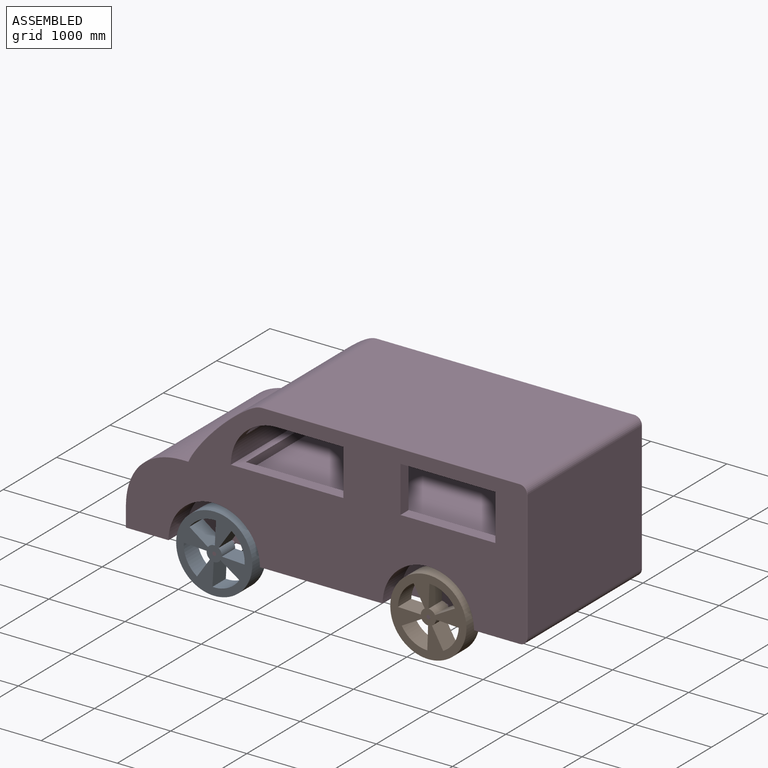
[diagram: assembled view]
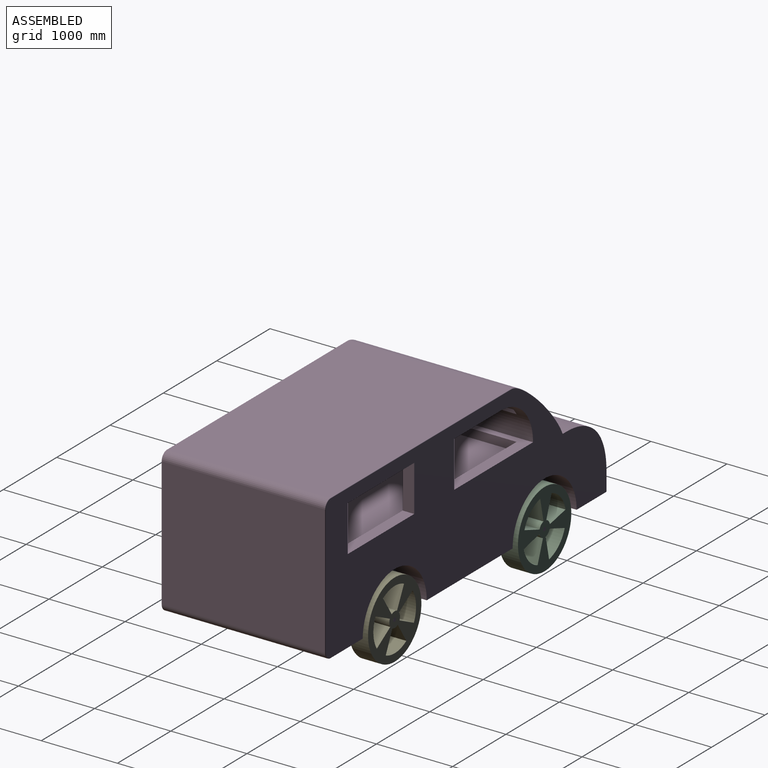
[diagram: assembled view, second angle]
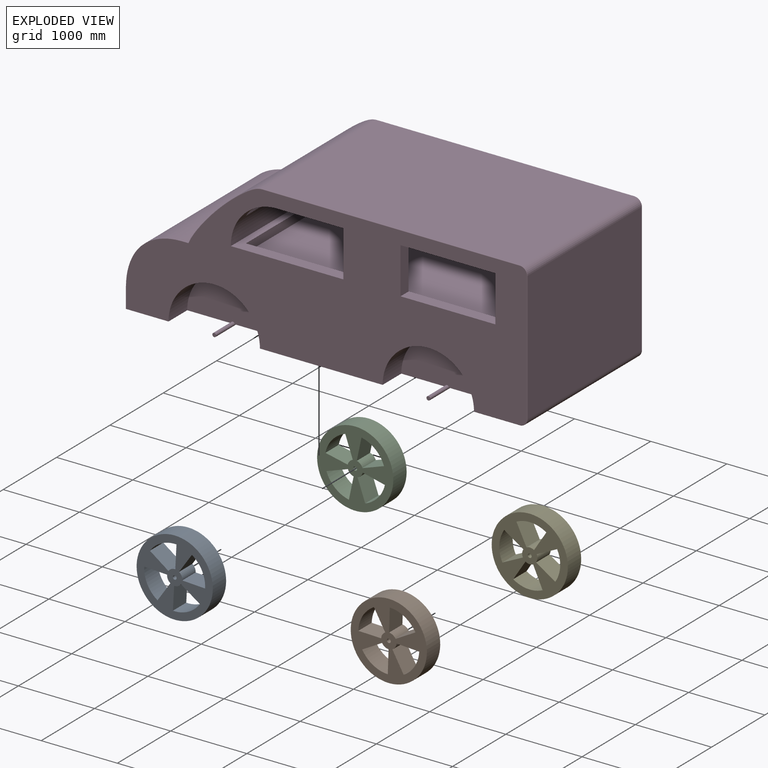
[diagram: exploded view]
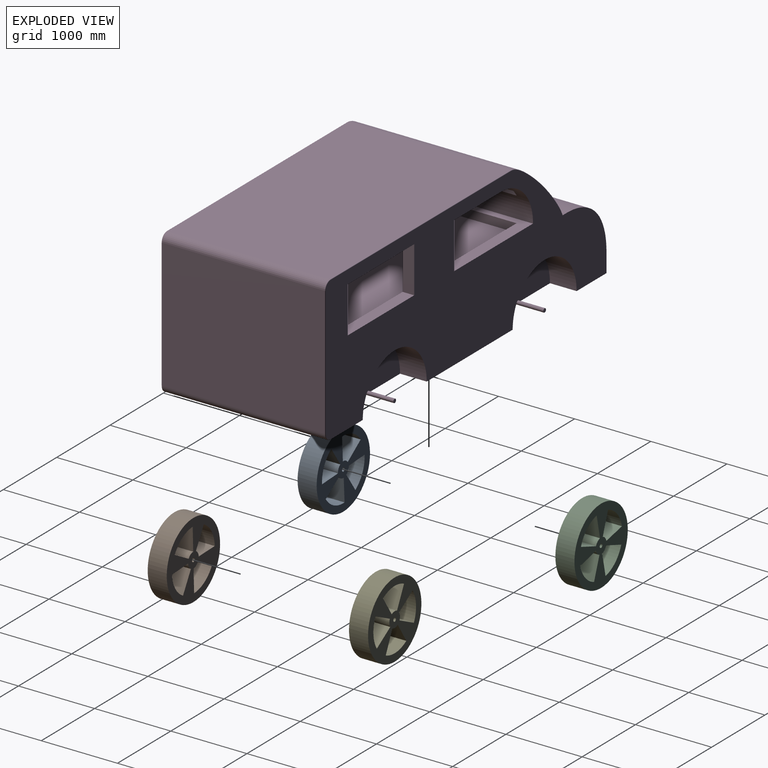
[diagram: exploded view, second angle]
ASSEMBLY  parts=5 mates=4
PART A: 20 faces, bbox 1000x250x1000 mm
  f0: cylinder r=100mm len=250mm, axis (0,1,0), area 26179.9mm2, adj f1,f16,f17,f18
  f1: plane 259.81x250mm, normal (0.5,0,-0.87), area 75000mm2, adj f0,f2,f17,f18
  f2: cylinder r=400mm len=393.65mm, axis (0,1,0), area 102895.9mm2, adj f1,f16,f17,f18
  f3: plane 263.4x250mm, normal (0.88,0,-0.48), area 75005.5mm2, adj f4,f12,f17,f18
  f4: cylinder r=100mm len=250mm, axis (0,1,0), area 26179.9mm2, adj f3,f5,f17,f18
  f5: plane 263.4x250mm, normal (-0.88,0,-0.48), area 75005.5mm2, adj f4,f12,f17,f18
  f6: plane 263.4x250mm, normal (-0.48,0,-0.88), area 75005.5mm2, adj f7,f13,f17,f18
  f7: cylinder r=100mm len=250mm, axis (0,1,0), area 26179.9mm2, adj f6,f8,f17,f18
  f8: plane 259.81x250mm, normal (-0.5,0,0.87), area 75000mm2, adj f7,f13,f17,f18
  f9: plane 263.4x250mm, normal (-0.88,0,0.48), area 75005.5mm2, adj f10,f14,f17,f18
  f10: cylinder r=100mm len=250mm, axis (0,1,0), area 26179.9mm2, adj f9,f11,f17,f18
  f11: plane 259.81x250mm, normal (0.87,0,0.5), area 75000mm2, adj f10,f14,f17,f18
  f12: cylinder r=400mm len=387.3mm, axis (0,1,0), area 101072.1mm2, adj f3,f5,f17,f18
  f13: cylinder r=400mm len=393.65mm, axis (0,1,0), area 102895.9mm2, adj f6,f8,f17,f18
  f14: cylinder r=400mm len=393.65mm, axis (0,1,0), area 102895.9mm2, adj f9,f11,f17,f18
  f15: cylinder r=500mm len=1000mm, axis (0,1,0), area 785398.2mm2, adj f17,f18
  f16: plane 263.4x250mm, normal (0.48,0,0.88), area 75005.5mm2, adj f0,f2,f17,f18
  f17: plane 1000x1000mm, normal (0,-1,0), area 474747mm2, adj f0,f1,f2,f3,f4,f5,f6,f7
  f18: plane 1000x1000mm, normal (0,1,0), area 474747mm2, adj f0,f1,f2,f3,f4,f5,f6,f7
  f19: cylinder r=25mm len=250mm, axis (0,-1,0), area 39269.9mm2, adj f17,f18
PART B: same geometry as A
PART C: same geometry as A
PART D: 68 faces, bbox 5279.3x2367x1933.2 mm
  f0: plane 2761.01x2151.78mm, normal (0,0,-1), area 5136084.7mm2, adj f2,f29,f40,f41,f42,f43,f44,f45
  f1: plane 2141.78x1175mm, normal (0,0,-1), area 2119843.6mm2, adj f42,f43,f44,f45,f49,f55,f56,f62
  f2: plane 5266.01x1895.01mm, normal (0,-1,0), area 6095918.6mm2, adj f0,f14,f15,f16,f17,f18,f25,f26
  f3: plane 1851.78x113.65mm, normal (1,0,0), area 210454.3mm2, adj f4,f5,f10,f17
  f4: plane 3649.97x849.97mm, normal (0,1,0), area 1142500.4mm2, adj f3,f6,f7,f8,f9,f10,f11,f12
  f5: plane 3649.97x849.97mm, normal (0,-1,0), area 1142500.4mm2, adj f3,f6,f7,f8,f9,f10,f11,f12
  f6: plane 1851.78x99.97mm, normal (-1,0,0), area 185128.2mm2, adj f4,f5,f7,f12
  f7: plane 3200x1851.78mm, normal (0,0,-1), area 5925701.8mm2, adj f4,f5,f6,f13
  f8: plane 1851.78x0.05mm, normal (1,0,0), area 93.6mm2, adj f4,f5,f9,f11
  f9: plane 1851.78x90.81mm, normal (0.71,0,-0.71), area 237807.3mm2, adj f4,f5,f8,f18
  f10: plane 3649.97x1851.78mm, normal (0,0,1), area 6758953.6mm2, adj f3,f4,f5,f13
  f11: plane 1851.78x50mm, normal (0,0,-1), area 92589.1mm2, adj f4,f5,f8,f12
  f12: plane 1851.78x149.97mm, normal (0.71,0,-0.71), area 392751.6mm2, adj f4,f5,f6,f11
  f13: plane 1851.78x750mm, normal (-1,0,0), area 1388836.3mm2, adj f4,f5,f7,f10
  f14: plane 2151.78x6.7mm, normal (1,0,0), area 14418.6mm2, adj f2,f17,f18,f29
  f15: plane 876.84x150mm, normal (0,0,-1), area 131525.6mm2, adj f2,f4,f16,f18
  f16: plane 606.7x150mm, normal (-1,0,0), area 91005.1mm2, adj f2,f4,f15,f17
  f17: plane 2151.78x1476.84mm, normal (0,0,1), area 614967mm2, adj f2,f3,f4,f5,f14,f16,f20,f29
  f18: cylinder r=600mm len=2151.78mm, axis (0,1,0), area 1157183mm2, adj f2,f4,f5,f9,f14,f15,f19,f29
  f19: plane 876.84x150mm, normal (0,0,-1), area 131525.6mm2, adj f5,f18,f20,f29
  f20: plane 606.7x150mm, normal (-1,0,0), area 91005.1mm2, adj f5,f17,f19,f29
  f21: plane 606.7x150mm, normal (1,0,0), area 91005.1mm2, adj f5,f22,f24,f29
  f22: plane 1245.33x150mm, normal (0,0,1), area 186800mm2, adj f5,f21,f23,f29
  f23: plane 606.7x150mm, normal (-1,0,0), area 91005.1mm2, adj f5,f22,f24,f29
  f24: plane 1245.33x150mm, normal (0,0,-1), area 186800mm2, adj f5,f21,f23,f29
  f25: plane 1245.33x150mm, normal (0,0,-1), area 186800mm2, adj f2,f4,f26,f28
  f26: plane 606.7x150mm, normal (-1,0,0), area 91005.1mm2, adj f2,f4,f25,f27
  f27: plane 1245.33x150mm, normal (0,0,1), area 186800mm2, adj f2,f4,f26,f28
  f28: plane 606.7x150mm, normal (1,0,0), area 91005.1mm2, adj f2,f4,f25,f27
  f29: plane 5266.01x1895.01mm, normal (0,1,0), area 6095457.6mm2, adj f0,f14,f17,f18,f19,f20,f21,f22
  f30: plane 3371.01x2141.78mm, normal (0,0,1), area 7219961.6mm2, adj f35,f54,f60,f66
  f31: plane 2151.78x200mm, normal (-1,0,0), area 430356.4mm2, adj f2,f29,f33,f34
  f32: plane 2141.78x1700mm, normal (1,0,0), area 3641029.1mm2, adj f54,f55,f58,f64
  f33: plane 2151.78x1135mm, normal (0,0,-1), area 2039772.3mm2, adj f2,f29,f31,f40,f41,f46,f47,f52
  f34: bspline ~2366.96x831.28mm, area 2840504.4mm2, adj f2,f29,f31,f35,f61,f67
  f35: bspline ~2366.96x1000mm, area 2925353.5mm2, adj f30,f34,f61,f67
  f36: plane 79x59.59mm, normal (0,1,0), area 2218.8mm2, adj f18,f38,f39
  f37: plane 79x59.59mm, normal (0,-1,0), area 2218.8mm2, adj f18,f38,f39
  f38: plane 1851.78x79mm, normal (1,0,0), area 146282.1mm2, adj f18,f36,f37,f39
  f39: plane 1851.78x59.59mm, normal (0,0,-1), area 110347.8mm2, adj f18,f36,f37,f38
  f40: cylinder r=600mm len=1200mm, axis (0,1,0), area 659734.5mm2, adj f0,f29,f33,f41
  f41: plane 1200x600mm, normal (0,1,0), area 564504.9mm2, adj f0,f33,f40,f52
  f42: cylinder r=600mm len=1200mm, axis (0,1,0), area 659722mm2, adj f0,f1,f29,f43,f62
  f43: plane 1200x600mm, normal (0,1,0), area 564504.9mm2, adj f0,f1,f42,f49
  f44: cylinder r=600mm len=1200mm, axis (0,-1,0), area 659722mm2, adj f0,f1,f2,f45,f56
  f45: plane 1200x600mm, normal (0,-1,0), area 564504.9mm2, adj f0,f1,f44,f49
  f46: cylinder r=600mm len=1200mm, axis (0,-1,0), area 659734.5mm2, adj f0,f2,f33,f47
  f47: plane 1200x600mm, normal (0,-1,0), area 564504.9mm2, adj f0,f33,f46,f52
  f48: plane 50x50mm, normal (0,-1,0), area 1963.5mm2, adj f49
  f49: cylinder r=25mm len=2151.78mm, axis (0,1,0), area 223978.4mm2, adj f0,f1,f43,f45,f48,f50
  f50: plane 50x50mm, normal (0,1,0), area 1963.5mm2, adj f49
  f51: plane 50x50mm, normal (0,-1,0), area 1963.5mm2, adj f52
  f52: cylinder r=25mm len=2151.78mm, axis (0,1,0), area 223978.4mm2, adj f0,f33,f41,f47,f51,f53
  f53: plane 50x50mm, normal (0,1,0), area 1963.5mm2, adj f52
  f54: cylinder r=100mm len=2141.78mm, axis (0,-1,0), area 336430.3mm2, adj f30,f32,f59,f65
  f55: cylinder r=100mm len=2141.78mm, axis (0,1,0), area 336430.3mm2, adj f1,f32,f57,f63
  f56: cylinder r=5mm len=600.02mm, axis (1,0,0), area 4712.5mm2, adj f1,f2,f44,f57
  f57: torus R=95mm, axis (0,1,0), area 1211.3mm2, adj f2,f55,f56,f58
  f58: cylinder r=5mm len=1700mm, axis (0,0,-1), area 13351.8mm2, adj f2,f32,f57,f59
  f59: torus R=95mm, axis (0,1,0), area 1211.3mm2, adj f2,f54,f58,f60
  f60: cylinder r=5mm len=3371.01mm, axis (-1,0,0), area 26475.8mm2, adj f2,f30,f59,f61
  f61: bspline ~1142.66x914.76mm, area 10702.5mm2, adj f2,f34,f35,f60
  f62: cylinder r=5mm len=600.02mm, axis (-1,0,0), area 4712.5mm2, adj f1,f29,f42,f63
  f63: torus R=95mm, axis (0,1,0), area 1211.3mm2, adj f29,f55,f62,f64
  f64: cylinder r=5mm len=1700mm, axis (0,0,1), area 13351.8mm2, adj f29,f32,f63,f65
  f65: torus R=95mm, axis (0,1,0), area 1211.3mm2, adj f29,f54,f64,f66
  f66: cylinder r=5mm len=3371.01mm, axis (1,0,0), area 26475.8mm2, adj f29,f30,f65,f67
  f67: bspline ~1142.66x914.76mm, area 10702.5mm2, adj f29,f34,f35,f66
PART E: same geometry as A
PLACE A rot(axis=(0,1,0),154.4deg) t=(-1475.07,-826.64,-939)mm
PLACE B rot(axis=(0,-1,0),58.1deg) t=(1335.94,-826.64,-939)mm
PLACE C rot(axis=(0,-1,0),48.1deg) t=(-1475.07,1075.14,-939)mm
PLACE D t=(0.43,-0.75,-939)mm fixed
PLACE E rot(axis=(0,1,0),4deg) t=(1335.94,1075.14,-939)mm
MATE revolute D.f52 <-> C.f19  axis (0,1,0) through (-1475.07,1075.14,-939)mm
MATE revolute A.f19 <-> D.f52  axis (0,-1,0) through (-1475.07,-1076.64,-939)mm
MATE revolute D.f49 <-> E.f2  axis (0,1,0) through (1335.94,1075.14,-939)mm
MATE revolute D.f49 <-> B.f2  axis (0,1,0) through (1335.94,-1076.64,-939)mm
